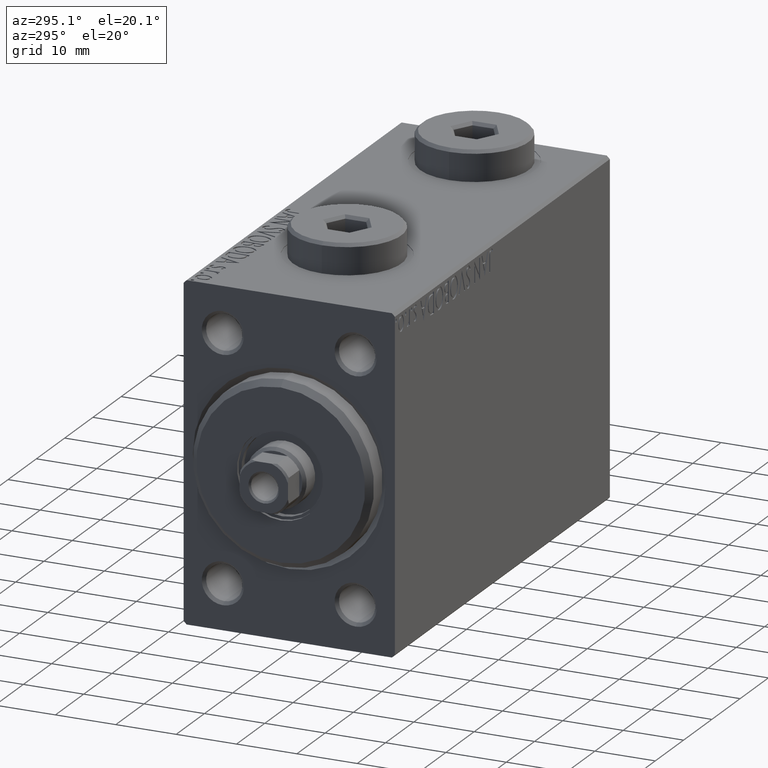
[diagram: clean part render]
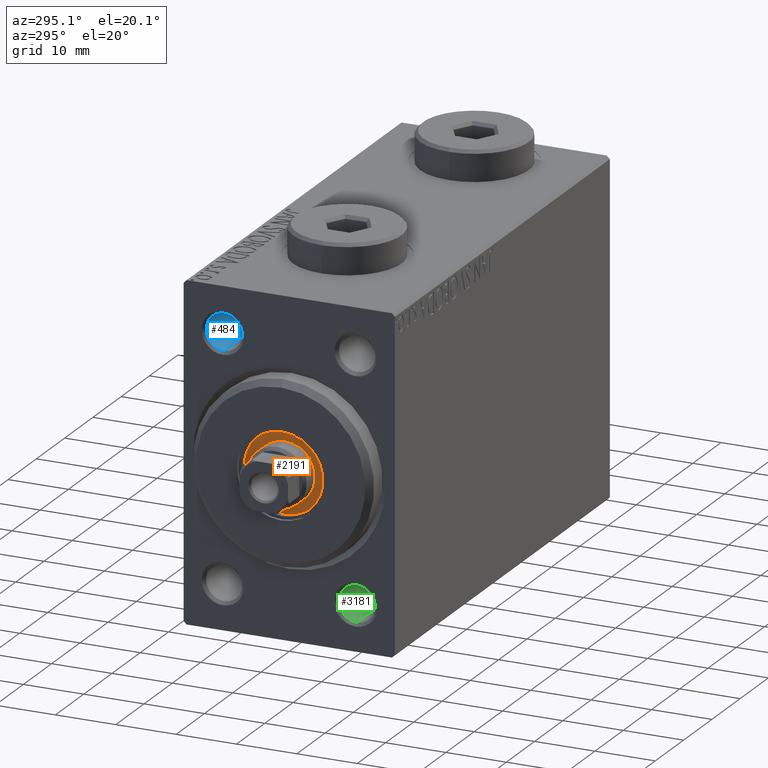
[diagram: same view with three faces highlighted in distinct colors, each labeled with its STEP entity id]
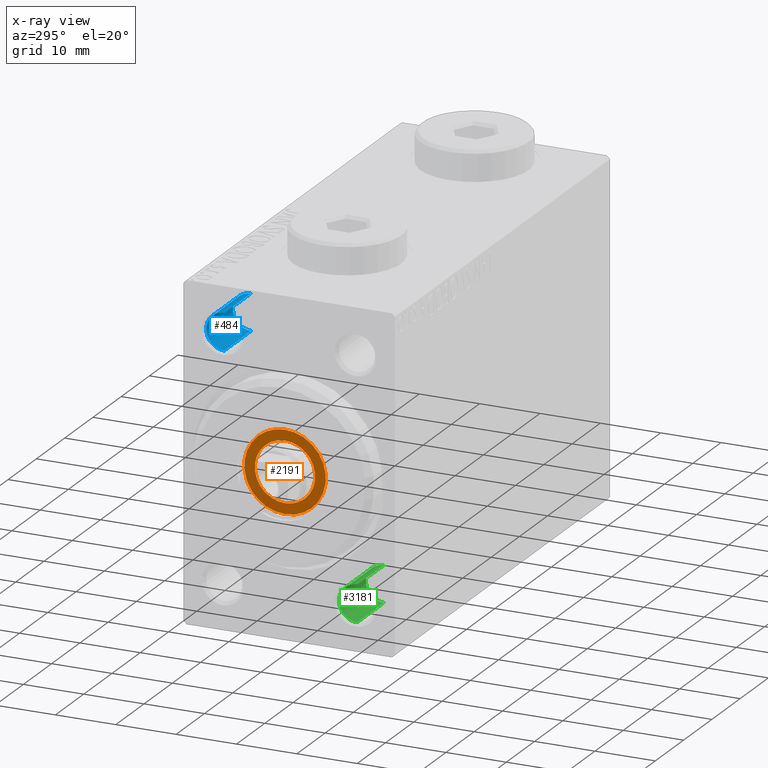
[diagram: x-ray of the same camera — body ghosted, the three highlighted faces saturated]
A machine part, auxiliary view with three faces highlighted in distinct colors.
The next image is the same camera in x-ray (body ghosted, the three faces saturated) — at least one of them is partly hidden behind the body in this view.
Their STEP definitions:

[orange] entity #2191 — the highlighted planar face has unit normal (-1, 0, 0).
#828 = EDGE_CURVE ( 'NONE', #18413, #11106, #28492, .T. ) ;
#1419 = DIRECTION ( 'NONE',  ( 0.000000000000000000, 0.000000000000000000, -1.000000000000000000 ) ) ;
#2191 = ADVANCED_FACE ( 'NONE', ( #12182, #19324 ), #33382, .T. ) ;
#2206 = CIRCLE ( 'NONE', #30895, 5.000000000000000000 ) ;
#3519 = EDGE_LOOP ( 'NONE', ( #34674, #38557 ) ) ;
#6156 = CARTESIAN_POINT ( 'NONE',  ( 1.500000000000000000, 8.266365894244632361E-16, -6.750000000000000000 ) ) ;
#8180 = VERTEX_POINT ( 'NONE', #6156 ) ;
#8955 = DIRECTION ( 'NONE',  ( 1.000000000000000000, 0.000000000000000000, 0.000000000000000000 ) ) ;
#9177 = DIRECTION ( 'NONE',  ( 0.000000000000000000, 0.000000000000000000, -1.000000000000000000 ) ) ;
#11106 = VERTEX_POINT ( 'NONE', #34656 ) ;
#12182 = FACE_BOUND ( 'NONE', #26212, .T. ) ;
#12643 = DIRECTION ( 'NONE',  ( 1.000000000000000000, 0.000000000000000000, 0.000000000000000000 ) ) ;
#12912 = EDGE_CURVE ( 'NONE', #37430, #8180, #44850, .T. ) ;
#15167 = DIRECTION ( 'NONE',  ( 0.000000000000000000, 0.000000000000000000, -1.000000000000000000 ) ) ;
#15988 = ORIENTED_EDGE ( 'NONE', *, *, #828, .F. ) ;
#18379 = CARTESIAN_POINT ( 'NONE',  ( 1.499999999999999556, 0.000000000000000000, -5.000000000000000000 ) ) ;
#18413 = VERTEX_POINT ( 'NONE', #18379 ) ;
#18804 = DIRECTION ( 'NONE',  ( 1.000000000000000000, 0.000000000000000000, 0.000000000000000000 ) ) ;
#19324 = FACE_OUTER_BOUND ( 'NONE', #3519, .T. ) ;
#19776 = CARTESIAN_POINT ( 'NONE',  ( 1.500000000000000000, 0.000000000000000000, 0.000000000000000000 ) ) ;
#20125 = AXIS2_PLACEMENT_3D ( 'NONE', #25270, #18804, #36761 ) ;
#22136 = CARTESIAN_POINT ( 'NONE',  ( 1.499999999999999556, 0.000000000000000000, 0.000000000000000000 ) ) ;
#23487 = EDGE_CURVE ( 'NONE', #11106, #18413, #2206, .T. ) ;
#23654 = ORIENTED_EDGE ( 'NONE', *, *, #23487, .F. ) ;
#25270 = CARTESIAN_POINT ( 'NONE',  ( 1.500000000000000000, 0.000000000000000000, 0.000000000000000000 ) ) ;
#26212 = EDGE_LOOP ( 'NONE', ( #15988, #23654 ) ) ;
#27987 = AXIS2_PLACEMENT_3D ( 'NONE', #30149, #12643, #9177 ) ;
#28492 = CIRCLE ( 'NONE', #35115, 5.000000000000000000 ) ;
#29012 = CARTESIAN_POINT ( 'NONE',  ( 1.499999999999999556, 0.000000000000000000, 0.000000000000000000 ) ) ;
#30149 = CARTESIAN_POINT ( 'NONE',  ( 1.500000000000000000, 0.000000000000000000, 0.000000000000000000 ) ) ;
#30895 = AXIS2_PLACEMENT_3D ( 'NONE', #29012, #36811, #15167 ) ;
#31621 = EDGE_CURVE ( 'NONE', #8180, #37430, #35593, .T. ) ;
#32051 = CARTESIAN_POINT ( 'NONE',  ( 1.500000000000000000, 0.000000000000000000, 6.750000000000000000 ) ) ;
#33382 = PLANE ( 'NONE',  #38831 ) ;
#34511 = DIRECTION ( 'NONE',  ( 0.000000000000000000, 0.000000000000000000, -1.000000000000000000 ) ) ;
#34656 = CARTESIAN_POINT ( 'NONE',  ( 1.499999999999999556, 6.123233995736765296E-16, 5.000000000000000000 ) ) ;
#34674 = ORIENTED_EDGE ( 'NONE', *, *, #12912, .T. ) ;
#35115 = AXIS2_PLACEMENT_3D ( 'NONE', #22136, #36420, #1419 ) ;
#35593 = CIRCLE ( 'NONE', #20125, 6.750000000000000000 ) ;
#36420 = DIRECTION ( 'NONE',  ( 1.000000000000000000, 0.000000000000000000, 0.000000000000000000 ) ) ;
#36761 = DIRECTION ( 'NONE',  ( 0.000000000000000000, 0.000000000000000000, -1.000000000000000000 ) ) ;
#36811 = DIRECTION ( 'NONE',  ( 1.000000000000000000, 0.000000000000000000, 0.000000000000000000 ) ) ;
#37430 = VERTEX_POINT ( 'NONE', #32051 ) ;
#38557 = ORIENTED_EDGE ( 'NONE', *, *, #31621, .T. ) ;
#38831 = AXIS2_PLACEMENT_3D ( 'NONE', #19776, #8955, #34511 ) ;
#44850 = CIRCLE ( 'NONE', #27987, 6.750000000000000000 ) ;

[blue] entity #484 — the highlighted cylindrical surface (edge-blend (fillet) strip) has radius 3 mm, axis along (-1, -0, -0).
#484 = ADVANCED_FACE ( 'NONE', ( #12347 ), #26395, .F. ) ;
#1094 = VERTEX_POINT ( 'NONE', #23950 ) ;
#2155 = VERTEX_POINT ( 'NONE', #40736 ) ;
#3006 = LINE ( 'NONE', #23048, #5186 ) ;
#5186 = VECTOR ( 'NONE', #13598, 1000.000000000000000 ) ;
#8887 = CARTESIAN_POINT ( 'NONE',  ( 0.000000000000000000, 11.00000000000000178, 20.00000000000000711 ) ) ;
#9163 = DIRECTION ( 'NONE',  ( -1.000000000000000000, -0.000000000000000000, -0.000000000000000000 ) ) ;
#10417 = VERTEX_POINT ( 'NONE', #17760 ) ;
#10901 = ORIENTED_EDGE ( 'NONE', *, *, #43704, .T. ) ;
#10969 = EDGE_LOOP ( 'NONE', ( #39186, #40756, #34756, #10901 ) ) ;
#12347 = FACE_OUTER_BOUND ( 'NONE', #10969, .T. ) ;
#12629 = DIRECTION ( 'NONE',  ( 0.000000000000000000, 0.000000000000000000, 1.000000000000000000 ) ) ;
#13598 = DIRECTION ( 'NONE',  ( -1.000000000000000000, -0.000000000000000000, -0.000000000000000000 ) ) ;
#14722 = EDGE_CURVE ( 'NONE', #22994, #10417, #3006, .T. ) ;
#15446 = VECTOR ( 'NONE', #36976, 1000.000000000000000 ) ;
#16194 = CARTESIAN_POINT ( 'NONE',  ( 9.999999999999994671, 11.00000000000000178, 17.00000000000001776 ) ) ;
#17760 = CARTESIAN_POINT ( 'NONE',  ( 0.4999999999999817923, 11.00000000000000178, 17.00000000000001776 ) ) ;
#19247 = CARTESIAN_POINT ( 'NONE',  ( 0.000000000000000000, 11.00000000000000178, 22.99999999999999645 ) ) ;
#22827 = EDGE_CURVE ( 'NONE', #1094, #2155, #40885, .T. ) ;
#22994 = VERTEX_POINT ( 'NONE', #16194 ) ;
#23048 = CARTESIAN_POINT ( 'NONE',  ( 0.000000000000000000, 11.00000000000000178, 17.00000000000001776 ) ) ;
#23950 = CARTESIAN_POINT ( 'NONE',  ( 9.999999999999994671, 11.00000000000000178, 22.99999999999999645 ) ) ;
#26395 = CYLINDRICAL_SURFACE ( 'NONE', #41673, 2.999999999999988898 ) ;
#26614 = AXIS2_PLACEMENT_3D ( 'NONE', #26898, #9163, #12629 ) ;
#26839 = DIRECTION ( 'NONE',  ( 0.000000000000000000, 0.000000000000000000, -1.000000000000000000 ) ) ;
#26898 = CARTESIAN_POINT ( 'NONE',  ( 9.999999999999994671, 11.00000000000000178, 20.00000000000000711 ) ) ;
#27304 = DIRECTION ( 'NONE',  ( -1.000000000000000000, 0.000000000000000000, 0.000000000000000000 ) ) ;
#27376 = EDGE_CURVE ( 'NONE', #1094, #22994, #38365, .T. ) ;
#28225 = DIRECTION ( 'NONE',  ( 0.000000000000000000, 0.000000000000000000, 1.000000000000000000 ) ) ;
#30760 = CARTESIAN_POINT ( 'NONE',  ( 0.4999999999999817923, 11.00000000000000178, 20.00000000000000711 ) ) ;
#34756 = ORIENTED_EDGE ( 'NONE', *, *, #22827, .T. ) ;
#36976 = DIRECTION ( 'NONE',  ( -1.000000000000000000, -0.000000000000000000, -0.000000000000000000 ) ) ;
#37205 = AXIS2_PLACEMENT_3D ( 'NONE', #30760, #27304, #26839 ) ;
#37241 = CIRCLE ( 'NONE', #37205, 2.999999999999988898 ) ;
#38365 = CIRCLE ( 'NONE', #26614, 2.999999999999988898 ) ;
#39186 = ORIENTED_EDGE ( 'NONE', *, *, #14722, .F. ) ;
#40736 = CARTESIAN_POINT ( 'NONE',  ( 0.4999999999999817923, 11.00000000000000178, 22.99999999999999645 ) ) ;
#40756 = ORIENTED_EDGE ( 'NONE', *, *, #27376, .F. ) ;
#40885 = LINE ( 'NONE', #19247, #15446 ) ;
#41568 = DIRECTION ( 'NONE',  ( -1.000000000000000000, -0.000000000000000000, -0.000000000000000000 ) ) ;
#41673 = AXIS2_PLACEMENT_3D ( 'NONE', #8887, #41568, #28225 ) ;
#43704 = EDGE_CURVE ( 'NONE', #2155, #10417, #37241, .T. ) ;

[green] entity #3181 — the highlighted cylindrical surface (edge-blend (fillet) strip) has radius 3 mm, axis along (-1, -0, -0).
#64 = VERTEX_POINT ( 'NONE', #26971 ) ;
#2115 = CARTESIAN_POINT ( 'NONE',  ( 0.4999999999999817923, -11.00000000000000533, -20.00000000000000000 ) ) ;
#2375 = CIRCLE ( 'NONE', #17834, 2.999999999999988898 ) ;
#3138 = VERTEX_POINT ( 'NONE', #42212 ) ;
#3181 = ADVANCED_FACE ( 'NONE', ( #17807 ), #39220, .F. ) ;
#11045 = CARTESIAN_POINT ( 'NONE',  ( 0.4999999999999817923, -11.00000000000000533, -17.00000000000001066 ) ) ;
#14387 = ORIENTED_EDGE ( 'NONE', *, *, #27881, .T. ) ;
#15641 = DIRECTION ( 'NONE',  ( -1.000000000000000000, -0.000000000000000000, -0.000000000000000000 ) ) ;
#17807 = FACE_OUTER_BOUND ( 'NONE', #28147, .T. ) ;
#17834 = AXIS2_PLACEMENT_3D ( 'NONE', #2115, #44472, #27228 ) ;
#18744 = ORIENTED_EDGE ( 'NONE', *, *, #27060, .F. ) ;
#21625 = DIRECTION ( 'NONE',  ( 0.000000000000000000, 0.000000000000000000, 1.000000000000000000 ) ) ;
#22295 = CARTESIAN_POINT ( 'NONE',  ( 0.4999999999999817923, -11.00000000000000533, -22.99999999999998934 ) ) ;
#22912 = AXIS2_PLACEMENT_3D ( 'NONE', #37538, #28549, #21625 ) ;
#23668 = CIRCLE ( 'NONE', #22912, 2.999999999999988898 ) ;
#26342 = CARTESIAN_POINT ( 'NONE',  ( 0.000000000000000000, -11.00000000000000533, -17.00000000000001066 ) ) ;
#26971 = CARTESIAN_POINT ( 'NONE',  ( 9.999999999999994671, -11.00000000000000533, -22.99999999999998934 ) ) ;
#27060 = EDGE_CURVE ( 'NONE', #3138, #64, #23668, .T. ) ;
#27184 = VERTEX_POINT ( 'NONE', #11045 ) ;
#27228 = DIRECTION ( 'NONE',  ( 0.000000000000000000, 0.000000000000000000, -1.000000000000000000 ) ) ;
#27881 = EDGE_CURVE ( 'NONE', #27184, #33863, #2375, .T. ) ;
#27982 = ORIENTED_EDGE ( 'NONE', *, *, #38941, .F. ) ;
#28147 = EDGE_LOOP ( 'NONE', ( #27982, #18744, #41400, #14387 ) ) ;
#28549 = DIRECTION ( 'NONE',  ( -1.000000000000000000, -0.000000000000000000, -0.000000000000000000 ) ) ;
#29709 = DIRECTION ( 'NONE',  ( 0.000000000000000000, 0.000000000000000000, 1.000000000000000000 ) ) ;
#33026 = DIRECTION ( 'NONE',  ( -1.000000000000000000, -0.000000000000000000, -0.000000000000000000 ) ) ;
#33863 = VERTEX_POINT ( 'NONE', #22295 ) ;
#34171 = VECTOR ( 'NONE', #44530, 1000.000000000000000 ) ;
#35368 = EDGE_CURVE ( 'NONE', #3138, #27184, #43822, .T. ) ;
#37538 = CARTESIAN_POINT ( 'NONE',  ( 9.999999999999994671, -11.00000000000000533, -20.00000000000000000 ) ) ;
#37641 = CARTESIAN_POINT ( 'NONE',  ( 0.000000000000000000, -11.00000000000000533, -22.99999999999998934 ) ) ;
#37737 = VECTOR ( 'NONE', #33026, 1000.000000000000000 ) ;
#37862 = LINE ( 'NONE', #37641, #34171 ) ;
#38528 = CARTESIAN_POINT ( 'NONE',  ( 0.000000000000000000, -11.00000000000000533, -20.00000000000000000 ) ) ;
#38860 = AXIS2_PLACEMENT_3D ( 'NONE', #38528, #15641, #29709 ) ;
#38941 = EDGE_CURVE ( 'NONE', #64, #33863, #37862, .T. ) ;
#39220 = CYLINDRICAL_SURFACE ( 'NONE', #38860, 2.999999999999988898 ) ;
#41400 = ORIENTED_EDGE ( 'NONE', *, *, #35368, .T. ) ;
#42212 = CARTESIAN_POINT ( 'NONE',  ( 9.999999999999994671, -11.00000000000000533, -17.00000000000001066 ) ) ;
#43822 = LINE ( 'NONE', #26342, #37737 ) ;
#44472 = DIRECTION ( 'NONE',  ( -1.000000000000000000, 0.000000000000000000, 0.000000000000000000 ) ) ;
#44530 = DIRECTION ( 'NONE',  ( -1.000000000000000000, -0.000000000000000000, -0.000000000000000000 ) ) ;